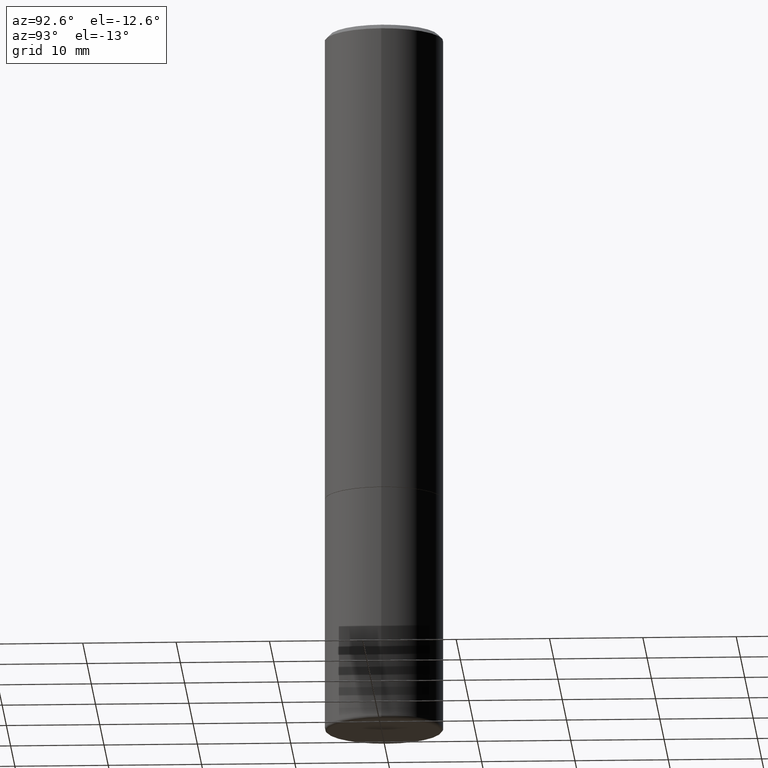
[diagram: clean part render]
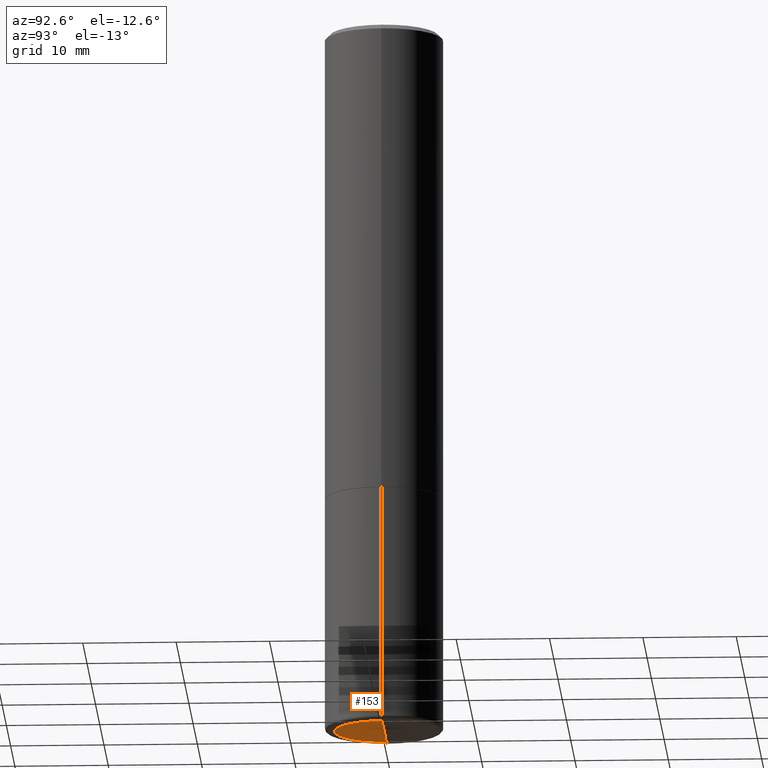
[diagram: same view with one face highlighted and labeled with its STEP entity id]
A machine part, auxiliary view. The second image highlights one B-rep face of the part: STEP entity #153.
In plain terms, the highlighted conical surface has half-angle 88 deg.
Its self-contained STEP definition (entity closure, byte-faithful):
#16 = CARTESIAN_POINT ( 'NONE',  ( -0.2082041019675246463, -9.019750068704174352E-15, -2.999767298070359800 ) ) ;
#35 = VERTEX_POINT ( 'NONE', #16 ) ;
#38 = CIRCLE ( 'NONE', #352, 0.2082041019675246463 ) ;
#41 = DIRECTION ( 'NONE',  ( -2.445468806185136597E-29, 3.491481338843145583E-15, 1.000000000000000000 ) ) ;
#50 = CONICAL_SURFACE ( 'NONE', #447, 0.2082041019675246463, 1.535889741755008586 ) ;
#67 = DIRECTION ( 'NONE',  ( 0.9993908270190957621, -6.978169709227547799E-15, -0.03489949670250241942 ) ) ;
#85 = VERTEX_POINT ( 'NONE', #247 ) ;
#100 = EDGE_CURVE ( 'NONE', #158, #35, #429, .T. ) ;
#115 = DIRECTION ( 'NONE',  ( -1.000000000000000000, 6.982962677686269077E-15, 0.000000000000000000 ) ) ;
#145 = LINE ( 'NONE', #407, #455 ) ;
#153 = ADVANCED_FACE ( 'NONE', ( #253 ), #50, .F. ) ;
#158 = VERTEX_POINT ( 'NONE', #370 ) ;
#192 = CARTESIAN_POINT ( 'NONE',  ( 7.335837353245335032E-29, -1.047363154208458493E-14, -2.999767298070359800 ) ) ;
#193 = DIRECTION ( 'NONE',  ( 1.000000000000000000, -6.982962677686269077E-15, 0.000000000000000000 ) ) ;
#243 = CARTESIAN_POINT ( 'NONE',  ( -0.2082041019675246463, -9.019750068704174352E-15, -2.999767298070359800 ) ) ;
#247 = CARTESIAN_POINT ( 'NONE',  ( 0.2082041019675246463, -1.190201536676060908E-14, -2.999767298070359800 ) ) ;
#250 = DIRECTION ( 'NONE',  ( -0.9993908270190957621, 6.856857904024552526E-15, -0.03489949670250241942 ) ) ;
#253 = FACE_OUTER_BOUND ( 'NONE', #459, .T. ) ;
#266 = EDGE_CURVE ( 'NONE', #158, #85, #145, .T. ) ;
#273 = ORIENTED_EDGE ( 'NONE', *, *, #427, .F. ) ;
#310 = ORIENTED_EDGE ( 'NONE', *, *, #100, .F. ) ;
#352 = AXIS2_PLACEMENT_3D ( 'NONE', #467, #41, #193 ) ;
#370 = CARTESIAN_POINT ( 'NONE',  ( 7.318124011218951646E-29, -1.044815055147217763E-14, -2.992496650618315268 ) ) ;
#407 = CARTESIAN_POINT ( 'NONE',  ( 0.2082041019675246463, -1.190201536676060908E-14, -2.999767298070359800 ) ) ;
#427 = EDGE_CURVE ( 'NONE', #35, #85, #38, .T. ) ;
#429 = LINE ( 'NONE', #243, #462 ) ;
#447 = AXIS2_PLACEMENT_3D ( 'NONE', #192, #482, #115 ) ;
#455 = VECTOR ( 'NONE', #67, 39.37007874015747433 ) ;
#459 = EDGE_LOOP ( 'NONE', ( #310, #466, #273 ) ) ;
#462 = VECTOR ( 'NONE', #250, 39.37007874015747433 ) ;
#466 = ORIENTED_EDGE ( 'NONE', *, *, #266, .T. ) ;
#467 = CARTESIAN_POINT ( 'NONE',  ( 7.335837353245335032E-29, -1.047363154208458493E-14, -2.999767298070359800 ) ) ;
#482 = DIRECTION ( 'NONE',  ( 2.445468806185136597E-29, -3.491481338843145583E-15, -1.000000000000000000 ) ) ;